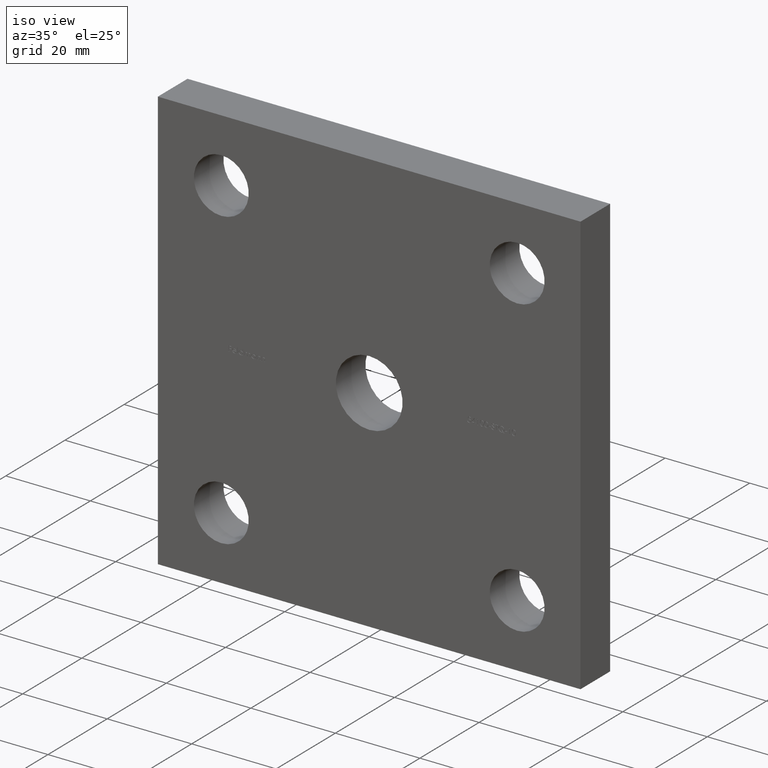
[diagram: clean part render]
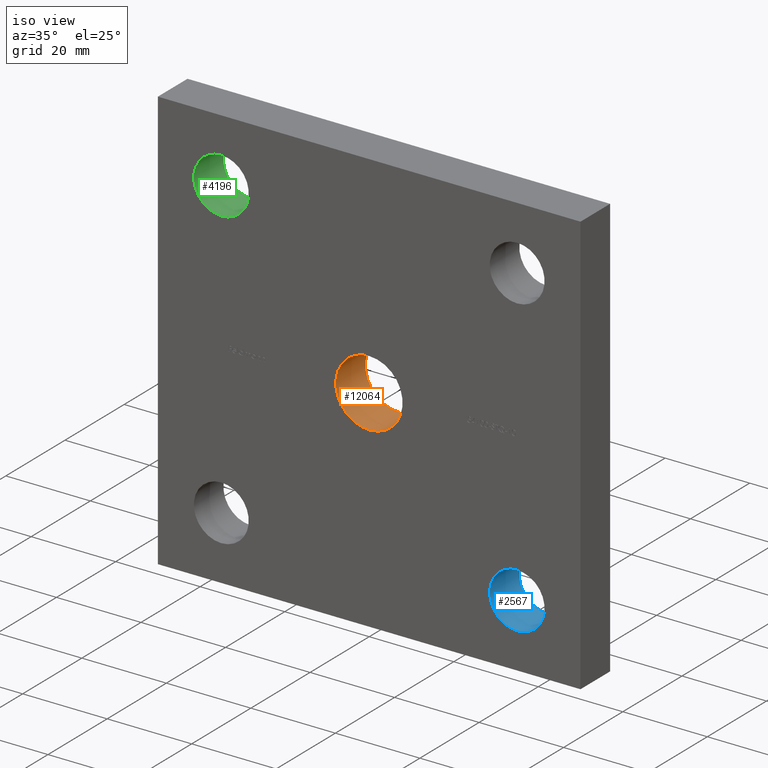
[diagram: same view with three faces highlighted in distinct colors, each labeled with its STEP entity id]
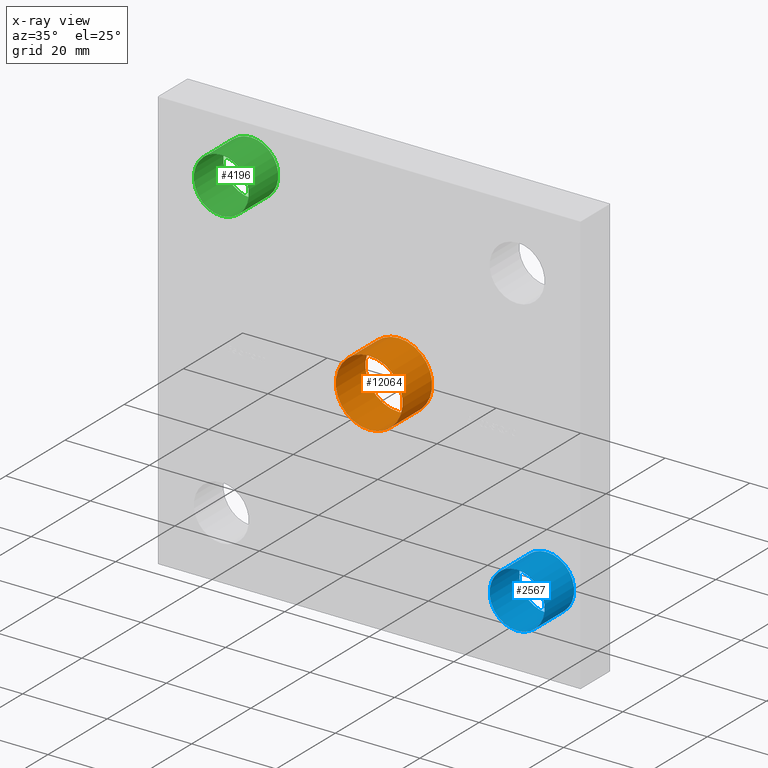
[diagram: x-ray of the same camera — body ghosted, the three highlighted faces saturated]
A machine part, iso view with three faces highlighted in distinct colors.
The next image is the same camera in x-ray (body ghosted, the three faces saturated) — at least one of them is partly hidden behind the body in this view.
Their STEP definitions:

[orange] entity #12064 — the highlighted cylindrical surface (bore or boss wall) has radius 7.9 mm, axis along (-0, 1, -0).
#181 = FACE_OUTER_BOUND ( 'NONE', #8408, .T. ) ;
#956 = DIRECTION ( 'NONE',  ( 0.000000000000000000, 1.000000000000000000, 0.000000000000000000 ) ) ;
#1203 = CYLINDRICAL_SURFACE ( 'NONE', #10876, 7.900000000000000355 ) ;
#2102 = DIRECTION ( 'NONE',  ( 0.000000000000000000, 0.000000000000000000, 1.000000000000000000 ) ) ;
#2467 = DIRECTION ( 'NONE',  ( 0.000000000000000000, 0.000000000000000000, 1.000000000000000000 ) ) ;
#2515 = DIRECTION ( 'NONE',  ( 0.000000000000000000, 1.000000000000000000, 0.000000000000000000 ) ) ;
#3513 = ORIENTED_EDGE ( 'NONE', *, *, #12737, .T. ) ;
#4337 = CARTESIAN_POINT ( 'NONE',  ( 0.000000000000000000, 0.000000000000000000, 0.000000000000000000 ) ) ;
#4563 = DIRECTION ( 'NONE',  ( -0.000000000000000000, 1.000000000000000000, -0.000000000000000000 ) ) ;
#4723 = EDGE_LOOP ( 'NONE', ( #3513 ) ) ;
#4931 = CIRCLE ( 'NONE', #7800, 7.900000000000000355 ) ;
#5607 = EDGE_CURVE ( 'NONE', #13897, #13897, #4931, .T. ) ;
#5791 = FACE_OUTER_BOUND ( 'NONE', #4723, .T. ) ;
#6290 = ORIENTED_EDGE ( 'NONE', *, *, #5607, .F. ) ;
#7525 = CARTESIAN_POINT ( 'NONE',  ( 0.000000000000000000, 10.00000000000000000, 7.900000000000000355 ) ) ;
#7800 = AXIS2_PLACEMENT_3D ( 'NONE', #4337, #956, #2102 ) ;
#7802 = VERTEX_POINT ( 'NONE', #7525 ) ;
#8408 = EDGE_LOOP ( 'NONE', ( #6290 ) ) ;
#9061 = CARTESIAN_POINT ( 'NONE',  ( 0.000000000000000000, 10.00000000000000000, 0.000000000000000000 ) ) ;
#10677 = CARTESIAN_POINT ( 'NONE',  ( 0.000000000000000000, 0.000000000000000000, 7.900000000000000355 ) ) ;
#10788 = AXIS2_PLACEMENT_3D ( 'NONE', #9061, #2515, #2467 ) ;
#10876 = AXIS2_PLACEMENT_3D ( 'NONE', #12078, #4563, #12122 ) ;
#12064 = ADVANCED_FACE ( 'NONE', ( #181, #5791 ), #1203, .F. ) ;
#12078 = CARTESIAN_POINT ( 'NONE',  ( 0.000000000000000000, 0.000000000000000000, 0.000000000000000000 ) ) ;
#12122 = DIRECTION ( 'NONE',  ( 0.000000000000000000, 0.000000000000000000, 1.000000000000000000 ) ) ;
#12534 = CIRCLE ( 'NONE', #10788, 7.900000000000000355 ) ;
#12737 = EDGE_CURVE ( 'NONE', #7802, #7802, #12534, .T. ) ;
#13897 = VERTEX_POINT ( 'NONE', #10677 ) ;

[blue] entity #2567 — the highlighted cylindrical surface (bore or boss wall) has radius 6.5 mm, axis along (-0, 1, -0).
#555 = DIRECTION ( 'NONE',  ( 0.000000000000000000, 0.000000000000000000, 1.000000000000000000 ) ) ;
#581 = EDGE_LOOP ( 'NONE', ( #9060 ) ) ;
#1879 = DIRECTION ( 'NONE',  ( 0.000000000000000000, 0.000000000000000000, 1.000000000000000000 ) ) ;
#2244 = EDGE_CURVE ( 'NONE', #4241, #4241, #13939, .T. ) ;
#2567 = ADVANCED_FACE ( 'NONE', ( #11224, #7170 ), #13605, .F. ) ;
#2618 = AXIS2_PLACEMENT_3D ( 'NONE', #8403, #3019, #10572 ) ;
#3019 = DIRECTION ( 'NONE',  ( 0.000000000000000000, 1.000000000000000000, 0.000000000000000000 ) ) ;
#3227 = VERTEX_POINT ( 'NONE', #10773 ) ;
#3829 = CIRCLE ( 'NONE', #10225, 6.499999999999999112 ) ;
#3934 = CARTESIAN_POINT ( 'NONE',  ( 35.00000000000000000, 0.000000000000000000, -35.00000000000000000 ) ) ;
#4241 = VERTEX_POINT ( 'NONE', #11854 ) ;
#4502 = EDGE_LOOP ( 'NONE', ( #11656 ) ) ;
#7170 = FACE_OUTER_BOUND ( 'NONE', #4502, .T. ) ;
#8252 = DIRECTION ( 'NONE',  ( -0.000000000000000000, 1.000000000000000000, -0.000000000000000000 ) ) ;
#8403 = CARTESIAN_POINT ( 'NONE',  ( 35.00000000000000000, 0.000000000000000000, -35.00000000000000000 ) ) ;
#8443 = EDGE_CURVE ( 'NONE', #3227, #3227, #3829, .T. ) ;
#9060 = ORIENTED_EDGE ( 'NONE', *, *, #2244, .F. ) ;
#10225 = AXIS2_PLACEMENT_3D ( 'NONE', #13531, #12288, #555 ) ;
#10572 = DIRECTION ( 'NONE',  ( 0.000000000000000000, 0.000000000000000000, 1.000000000000000000 ) ) ;
#10773 = CARTESIAN_POINT ( 'NONE',  ( 35.00000000000000000, 10.00000000000000000, -28.50000000000000355 ) ) ;
#11224 = FACE_OUTER_BOUND ( 'NONE', #581, .T. ) ;
#11656 = ORIENTED_EDGE ( 'NONE', *, *, #8443, .T. ) ;
#11854 = CARTESIAN_POINT ( 'NONE',  ( 35.00000000000000000, 0.000000000000000000, -28.50000000000000355 ) ) ;
#12288 = DIRECTION ( 'NONE',  ( 0.000000000000000000, 1.000000000000000000, 0.000000000000000000 ) ) ;
#13531 = CARTESIAN_POINT ( 'NONE',  ( 35.00000000000000000, 10.00000000000000000, -35.00000000000000000 ) ) ;
#13605 = CYLINDRICAL_SURFACE ( 'NONE', #13760, 6.499999999999999112 ) ;
#13760 = AXIS2_PLACEMENT_3D ( 'NONE', #3934, #8252, #1879 ) ;
#13939 = CIRCLE ( 'NONE', #2618, 6.499999999999999112 ) ;

[green] entity #4196 — the highlighted cylindrical surface (bore or boss wall) has radius 6.5 mm, axis along (-0, 1, -0).
#977 = CARTESIAN_POINT ( 'NONE',  ( -35.00000000000000000, 10.00000000000000000, 35.00000000000000000 ) ) ;
#1905 = EDGE_CURVE ( 'NONE', #2027, #2027, #5475, .T. ) ;
#2027 = VERTEX_POINT ( 'NONE', #13715 ) ;
#2044 = FACE_OUTER_BOUND ( 'NONE', #12657, .T. ) ;
#2359 = AXIS2_PLACEMENT_3D ( 'NONE', #3730, #13568, #11429 ) ;
#3730 = CARTESIAN_POINT ( 'NONE',  ( -35.00000000000000000, 0.000000000000000000, 35.00000000000000000 ) ) ;
#4196 = ADVANCED_FACE ( 'NONE', ( #2044, #6642 ), #8818, .F. ) ;
#5065 = EDGE_LOOP ( 'NONE', ( #10999 ) ) ;
#5123 = DIRECTION ( 'NONE',  ( 0.000000000000000000, 0.000000000000000000, 1.000000000000000000 ) ) ;
#5156 = CARTESIAN_POINT ( 'NONE',  ( -35.00000000000000000, 0.000000000000000000, 35.00000000000000000 ) ) ;
#5159 = AXIS2_PLACEMENT_3D ( 'NONE', #5156, #5198, #10489 ) ;
#5198 = DIRECTION ( 'NONE',  ( -0.000000000000000000, 1.000000000000000000, -0.000000000000000000 ) ) ;
#5475 = CIRCLE ( 'NONE', #6970, 6.499999999999999112 ) ;
#6416 = CARTESIAN_POINT ( 'NONE',  ( -35.00000000000000000, 0.000000000000000000, 41.50000000000000000 ) ) ;
#6642 = FACE_OUTER_BOUND ( 'NONE', #5065, .T. ) ;
#6970 = AXIS2_PLACEMENT_3D ( 'NONE', #977, #7355, #5123 ) ;
#7355 = DIRECTION ( 'NONE',  ( 0.000000000000000000, 1.000000000000000000, 0.000000000000000000 ) ) ;
#8818 = CYLINDRICAL_SURFACE ( 'NONE', #5159, 6.499999999999999112 ) ;
#9338 = CIRCLE ( 'NONE', #2359, 6.499999999999999112 ) ;
#10009 = ORIENTED_EDGE ( 'NONE', *, *, #10576, .F. ) ;
#10489 = DIRECTION ( 'NONE',  ( 0.000000000000000000, 0.000000000000000000, 1.000000000000000000 ) ) ;
#10576 = EDGE_CURVE ( 'NONE', #11850, #11850, #9338, .T. ) ;
#10999 = ORIENTED_EDGE ( 'NONE', *, *, #1905, .T. ) ;
#11429 = DIRECTION ( 'NONE',  ( 0.000000000000000000, 0.000000000000000000, 1.000000000000000000 ) ) ;
#11850 = VERTEX_POINT ( 'NONE', #6416 ) ;
#12657 = EDGE_LOOP ( 'NONE', ( #10009 ) ) ;
#13568 = DIRECTION ( 'NONE',  ( 0.000000000000000000, 1.000000000000000000, 0.000000000000000000 ) ) ;
#13715 = CARTESIAN_POINT ( 'NONE',  ( -35.00000000000000000, 10.00000000000000000, 41.50000000000000000 ) ) ;